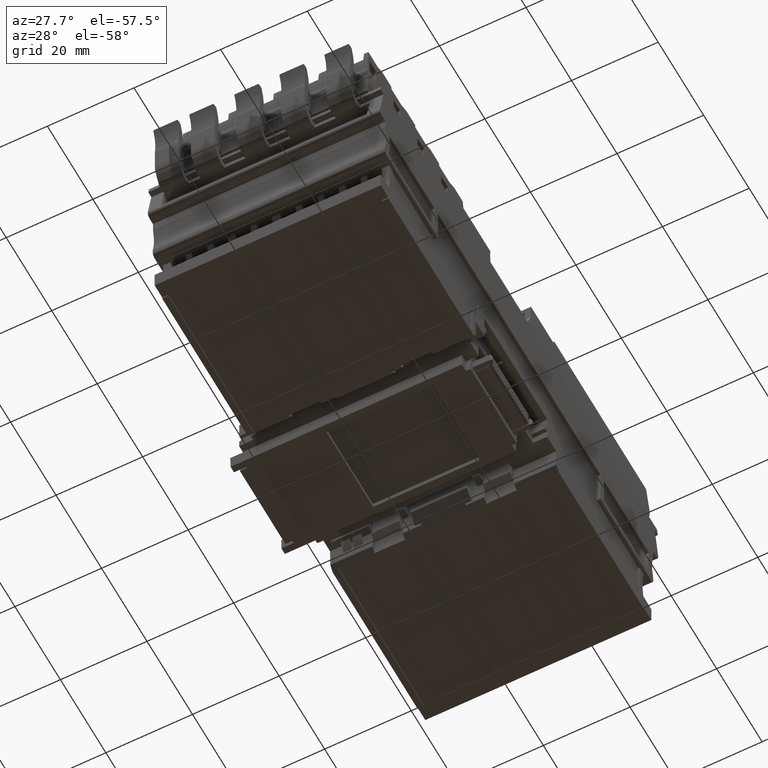
[diagram: clean part render]
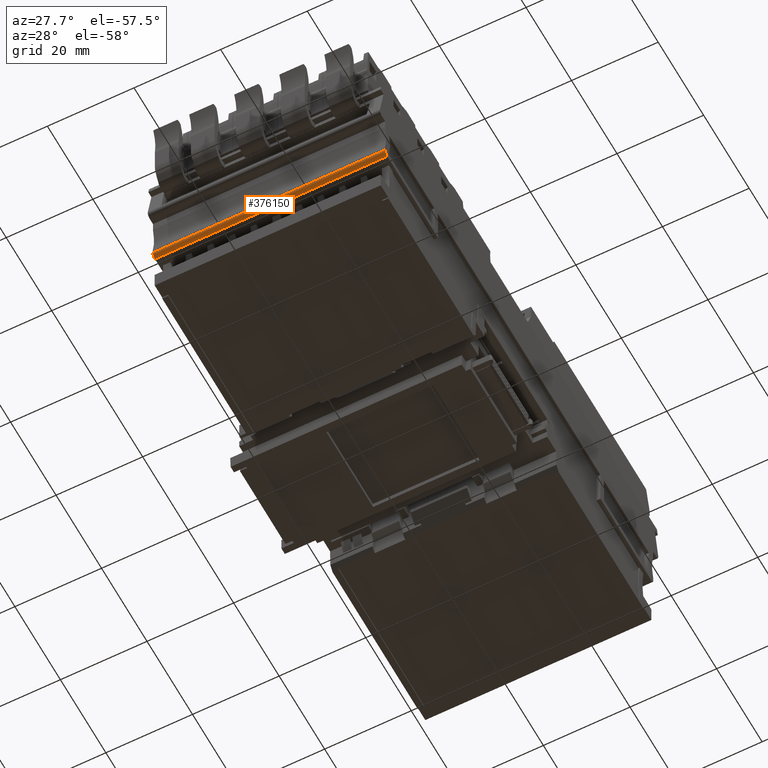
[diagram: same view with one face highlighted and labeled with its STEP entity id]
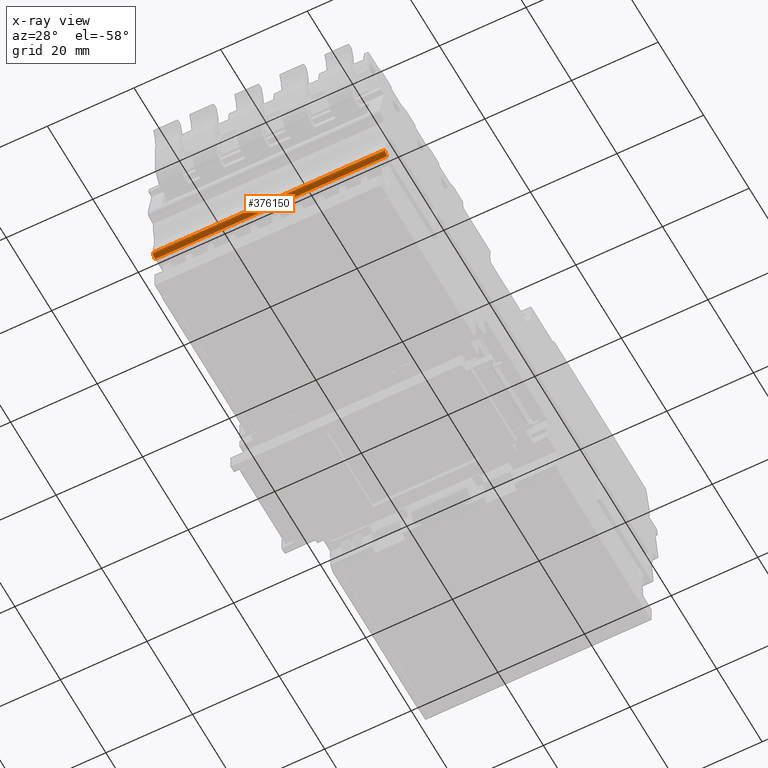
[diagram: x-ray of the same camera — body ghosted, the highlighted face saturated]
A machine part, auxiliary view. The second image highlights one B-rep face of the part: STEP entity #376150.
The next image is the same camera in x-ray: the body ghosted, the highlighted face saturated — about 0% of this face is hidden behind the body in this view.
In plain terms, the highlighted cylindrical surface (edge-blend (fillet) strip) has radius 1 mm, axis along (-1, 0, 0).
Its self-contained STEP definition (entity closure, byte-faithful):
#191960=CARTESIAN_POINT('',(-23.4587148004231,13.7505985514358,
10.1145767387288));
#191970=VERTEX_POINT('',#191960);
#192000=CARTESIAN_POINT('',(-23.5805655825343,14.730947402374,
9.95943642374199));
#192010=DIRECTION('',(0.00212691332374861,0.156562576307246,
0.987665751122186));
#192020=DIRECTION('',(-0.999997737947596,0.000351191570620833,
0.00209779984081798));
#192030=AXIS2_PLACEMENT_3D('',#192000,#192010,#192020);
#192040=CIRCLE('',#192030,1.);
#192050=CARTESIAN_POINT('',(-24.5731117341757,14.6109295281364,
9.98059881314769));
#192060=VERTEX_POINT('',#192050);
#192070=EDGE_CURVE('',#192060,#191970,#192040,.T.);
#198150=CARTESIAN_POINT('',(-24.6871142886654,6.21917543802649,
-42.9582854469899));
#198160=VERTEX_POINT('',#198150);
#198190=CARTESIAN_POINT('',(-23.694568137024,6.33919331226407,
-42.9794478363957));
#198200=DIRECTION('',(0.00212691332386244,0.156562576307274,
0.987665751122181));
#198210=DIRECTION('',(-0.999997737947596,0.000351191570638654,
0.00209779984093041));
#198220=AXIS2_PLACEMENT_3D('',#198190,#198200,#198210);
#198230=CIRCLE('',#198220,1.);
#198240=CARTESIAN_POINT('',(-23.572717354911,5.35884446129652,
-42.8243075214889));
#198250=VERTEX_POINT('',#198240);
#198260=EDGE_CURVE('',#198160,#198250,#198230,.T.);
#218490=CARTESIAN_POINT('',(-23.3193062662047,24.0124926155145,
74.8511283959176));
#218500=DIRECTION('',(-0.00212691333002947,-0.15656257630805,
-0.987665751122045));
#218510=VECTOR('',#218500,1.);
#218520=LINE('',#218490,#218510);
#218530=EDGE_CURVE('',#191970,#198250,#218520,.T.);
#375990=CARTESIAN_POINT('',(-23.4411570483176,24.9928414664668,
74.6959880809286));
#376000=DIRECTION('',(-0.00212691333003169,-0.156562576308033,
-0.987665751122048));
#376010=DIRECTION('',(0.992546151641316,0.120017874237081,
-0.0211623894120285));
#376020=AXIS2_PLACEMENT_3D('',#375990,#376000,#376010);
#376030=CYLINDRICAL_SURFACE('',#376020,1.);
#376040=ORIENTED_EDGE('',*,*,#198260,.T.);
#376050=CARTESIAN_POINT('',(-24.433703199959,24.8728235922302,
74.7171504703406));
#376060=DIRECTION('',(-0.00212691333003169,-0.156562576308033,
-0.987665751122048));
#376070=VECTOR('',#376060,1.);
#376080=LINE('',#376050,#376070);
#376090=EDGE_CURVE('',#192060,#198160,#376080,.T.);
#376100=ORIENTED_EDGE('',*,*,#376090,.T.);
#376110=ORIENTED_EDGE('',*,*,#192070,.F.);
#376120=ORIENTED_EDGE('',*,*,#218530,.F.);
#376130=EDGE_LOOP('',(#376120,#376110,#376100,#376040));
#376140=FACE_OUTER_BOUND('',#376130,.T.);
#376150=ADVANCED_FACE('',(#376140),#376030,.T.);